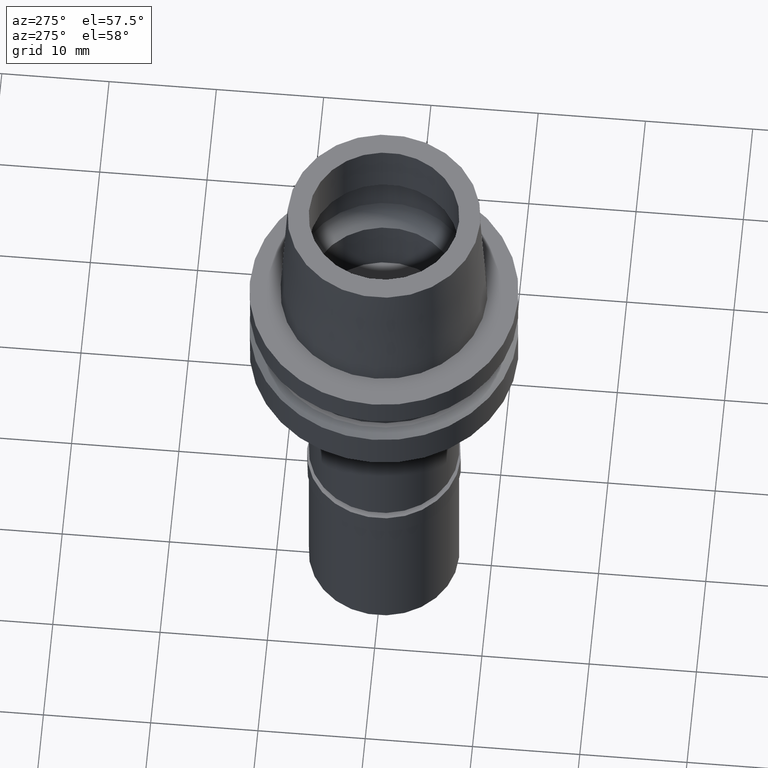
[diagram: clean part render]
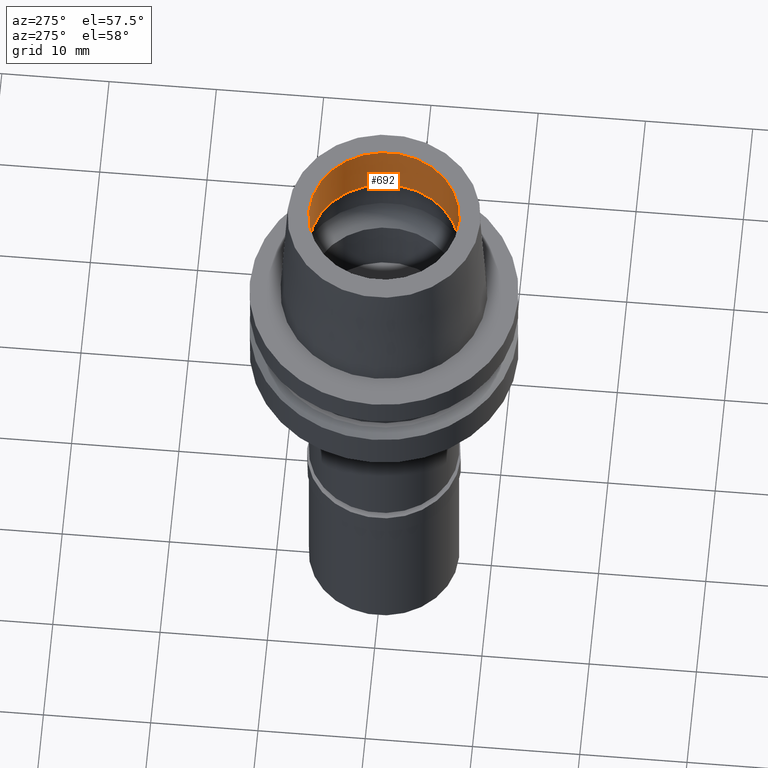
[diagram: same view with one face highlighted and labeled with its STEP entity id]
A machine part, auxiliary view. The second image highlights one B-rep face of the part: STEP entity #692.
In plain terms, the highlighted cylindrical surface (partial cylindrical patch) has radius 7 mm, axis along (0, 0, 1).
Its self-contained STEP definition (entity closure, byte-faithful):
#128 = DIRECTION ( 'NONE',  ( 0.0000000000000000000, 1.000000000000000000, 0.0000000000000000000 ) ) ;
#148 = EDGE_CURVE ( 'NONE', #718, #948, #2493, .T. ) ;
#157 = DIRECTION ( 'NONE',  ( 0.0000000000000000000, 0.0000000000000000000, 1.000000000000000000 ) ) ;
#167 = CARTESIAN_POINT ( 'NONE',  ( 0.0000000000000000000, 7.000000000000000000, 7.498675134594999570 ) ) ;
#234 = DIRECTION ( 'NONE',  ( 0.0000000000000000000, 0.0000000000000000000, 1.000000000000000000 ) ) ;
#244 = DIRECTION ( 'NONE',  ( 0.0000000000000000000, -1.000000000000000000, 0.0000000000000000000 ) ) ;
#368 = LINE ( 'NONE', #1428, #1368 ) ;
#381 = CARTESIAN_POINT ( 'NONE',  ( 0.0000000000000000000, 0.0000000000000000000, 7.498675134594999570 ) ) ;
#425 = EDGE_CURVE ( 'NONE', #2396, #464, #2331, .T. ) ;
#464 = VERTEX_POINT ( 'NONE', #1902 ) ;
#639 = ORIENTED_EDGE ( 'NONE', *, *, #148, .T. ) ;
#692 = ADVANCED_FACE ( 'NONE', ( #2205 ), #1169, .F. ) ;
#714 = CARTESIAN_POINT ( 'NONE',  ( 0.0000000000000000000, 0.0000000000000000000, -43.70000000000000284 ) ) ;
#718 = VERTEX_POINT ( 'NONE', #821 ) ;
#821 = CARTESIAN_POINT ( 'NONE',  ( 0.0000000000000000000, 7.000000000000000000, 7.498675134594999570 ) ) ;
#931 = AXIS2_PLACEMENT_3D ( 'NONE', #714, #2180, #128 ) ;
#948 = VERTEX_POINT ( 'NONE', #2063 ) ;
#1067 = CARTESIAN_POINT ( 'NONE',  ( 0.0000000000000000000, 0.0000000000000000000, 13.00000000000000000 ) ) ;
#1123 = ORIENTED_EDGE ( 'NONE', *, *, #2031, .F. ) ;
#1169 = CYLINDRICAL_SURFACE ( 'NONE', #931, 7.000000000000000000 ) ;
#1230 = DIRECTION ( 'NONE',  ( 0.0000000000000000000, 0.0000000000000000000, -1.000000000000000000 ) ) ;
#1368 = VECTOR ( 'NONE', #2291, 1000.000000000000000 ) ;
#1412 = AXIS2_PLACEMENT_3D ( 'NONE', #381, #1230, #2475 ) ;
#1428 = CARTESIAN_POINT ( 'NONE',  ( 0.0000000000000000000, -7.000000000000000000, 7.498675134594999570 ) ) ;
#1510 = ORIENTED_EDGE ( 'NONE', *, *, #425, .T. ) ;
#1512 = ORIENTED_EDGE ( 'NONE', *, *, #2557, .T. ) ;
#1707 = VECTOR ( 'NONE', #157, 1000.000000000000000 ) ;
#1902 = CARTESIAN_POINT ( 'NONE',  ( 0.0000000000000000000, 7.000000000000000000, 13.00000000000000000 ) ) ;
#2031 = EDGE_CURVE ( 'NONE', #718, #464, #2045, .T. ) ;
#2045 = LINE ( 'NONE', #167, #1707 ) ;
#2063 = CARTESIAN_POINT ( 'NONE',  ( 0.0000000000000000000, -7.000000000000000000, 7.498675134594999570 ) ) ;
#2180 = DIRECTION ( 'NONE',  ( 0.0000000000000000000, 0.0000000000000000000, 1.000000000000000000 ) ) ;
#2205 = FACE_OUTER_BOUND ( 'NONE', #2663, .T. ) ;
#2291 = DIRECTION ( 'NONE',  ( 0.0000000000000000000, 0.0000000000000000000, 1.000000000000000000 ) ) ;
#2331 = CIRCLE ( 'NONE', #2664, 7.000000000000000000 ) ;
#2396 = VERTEX_POINT ( 'NONE', #2409 ) ;
#2409 = CARTESIAN_POINT ( 'NONE',  ( 0.0000000000000000000, -7.000000000000000000, 13.00000000000000000 ) ) ;
#2475 = DIRECTION ( 'NONE',  ( 0.0000000000000000000, 1.000000000000000000, 0.0000000000000000000 ) ) ;
#2493 = CIRCLE ( 'NONE', #1412, 7.000000000000000000 ) ;
#2557 = EDGE_CURVE ( 'NONE', #948, #2396, #368, .T. ) ;
#2663 = EDGE_LOOP ( 'NONE', ( #639, #1512, #1510, #1123 ) ) ;
#2664 = AXIS2_PLACEMENT_3D ( 'NONE', #1067, #234, #244 ) ;